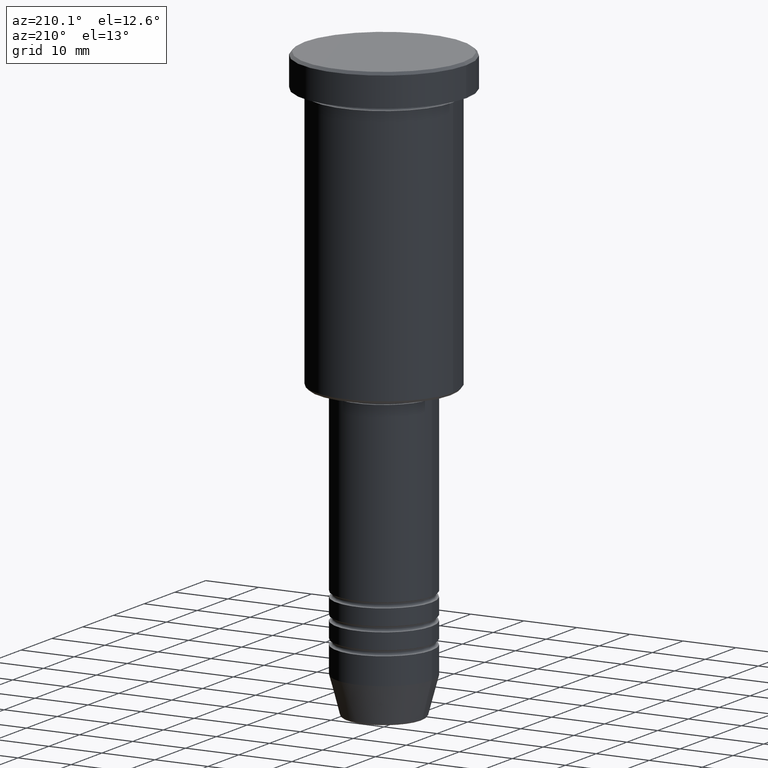
[diagram: clean part render]
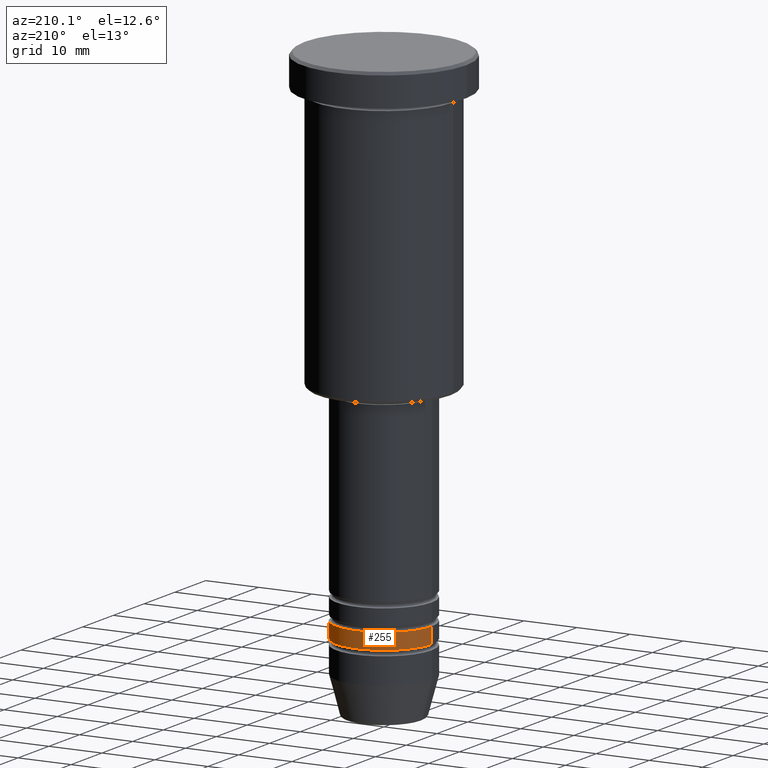
[diagram: same view with one face highlighted and labeled with its STEP entity id]
A machine part, auxiliary view. The second image highlights one B-rep face of the part: STEP entity #255.
In plain terms, the highlighted cylindrical surface (partial cylindrical patch) has radius 9 mm, axis along (-0, -0, 1).
Its self-contained STEP definition (entity closure, byte-faithful):
#25 = DIRECTION ( 'NONE',  ( 1.000000000000000000, 0.000000000000000000, 0.000000000000000000 ) ) ;
#83 = EDGE_CURVE ( 'NONE', #944, #1179, #112, .T. ) ;
#112 = CIRCLE ( 'NONE', #720, 9.000000000000000000 ) ;
#118 = CARTESIAN_POINT ( 'NONE',  ( 0.000000000000000000, 0.000000000000000000, 0.000000000000000000 ) ) ;
#127 = CARTESIAN_POINT ( 'NONE',  ( 9.000000000000001776, 0.000000000000000000, 0.000000000000000000 ) ) ;
#184 = DIRECTION ( 'NONE',  ( 1.000000000000000000, 0.000000000000000000, 0.000000000000000000 ) ) ;
#199 = CIRCLE ( 'NONE', #1172, 9.000000000000001776 ) ;
#255 = ADVANCED_FACE ( 'NONE', ( #745 ), #320, .T. ) ;
#266 = DIRECTION ( 'NONE',  ( -0.000000000000000000, -0.000000000000000000, 1.000000000000000000 ) ) ;
#280 = CARTESIAN_POINT ( 'NONE',  ( -9.000000000000001776, 1.102182119232617911E-15, -97.99999999999988631 ) ) ;
#320 = CYLINDRICAL_SURFACE ( 'NONE', #792, 9.000000000000001776 ) ;
#328 = CARTESIAN_POINT ( 'NONE',  ( 9.000000000000000000, 0.000000000000000000, -94.99999999999988631 ) ) ;
#336 = VECTOR ( 'NONE', #856, 1000.000000000000000 ) ;
#337 = ORIENTED_EDGE ( 'NONE', *, *, #83, .F. ) ;
#338 = LINE ( 'NONE', #435, #1105 ) ;
#364 = CARTESIAN_POINT ( 'NONE',  ( 0.000000000000000000, 0.000000000000000000, -94.99999999999988631 ) ) ;
#381 = EDGE_CURVE ( 'NONE', #494, #1179, #338, .T. ) ;
#430 = ORIENTED_EDGE ( 'NONE', *, *, #1125, .T. ) ;
#435 = CARTESIAN_POINT ( 'NONE',  ( -9.000000000000001776, 1.102182119232617911E-15, 0.000000000000000000 ) ) ;
#463 = VERTEX_POINT ( 'NONE', #603 ) ;
#494 = VERTEX_POINT ( 'NONE', #280 ) ;
#541 = DIRECTION ( 'NONE',  ( 1.000000000000000000, 0.000000000000000000, 0.000000000000000000 ) ) ;
#559 = ORIENTED_EDGE ( 'NONE', *, *, #641, .F. ) ;
#603 = CARTESIAN_POINT ( 'NONE',  ( 9.000000000000001776, 0.000000000000000000, -97.99999999999988631 ) ) ;
#641 = EDGE_CURVE ( 'NONE', #463, #944, #1110, .T. ) ;
#646 = CARTESIAN_POINT ( 'NONE',  ( -9.000000000000000000, 1.102182119232617714E-15, -94.99999999999988631 ) ) ;
#720 = AXIS2_PLACEMENT_3D ( 'NONE', #364, #1176, #541 ) ;
#745 = FACE_OUTER_BOUND ( 'NONE', #932, .T. ) ;
#792 = AXIS2_PLACEMENT_3D ( 'NONE', #118, #834, #25 ) ;
#834 = DIRECTION ( 'NONE',  ( -0.000000000000000000, -0.000000000000000000, 1.000000000000000000 ) ) ;
#856 = DIRECTION ( 'NONE',  ( -0.000000000000000000, -0.000000000000000000, 1.000000000000000000 ) ) ;
#932 = EDGE_LOOP ( 'NONE', ( #430, #994, #337, #559 ) ) ;
#944 = VERTEX_POINT ( 'NONE', #328 ) ;
#994 = ORIENTED_EDGE ( 'NONE', *, *, #381, .T. ) ;
#1014 = CARTESIAN_POINT ( 'NONE',  ( 0.000000000000000000, 0.000000000000000000, -97.99999999999988631 ) ) ;
#1062 = DIRECTION ( 'NONE',  ( -0.000000000000000000, -0.000000000000000000, 1.000000000000000000 ) ) ;
#1105 = VECTOR ( 'NONE', #1062, 1000.000000000000000 ) ;
#1110 = LINE ( 'NONE', #127, #336 ) ;
#1125 = EDGE_CURVE ( 'NONE', #463, #494, #199, .T. ) ;
#1172 = AXIS2_PLACEMENT_3D ( 'NONE', #1014, #266, #184 ) ;
#1176 = DIRECTION ( 'NONE',  ( -0.000000000000000000, -0.000000000000000000, 1.000000000000000000 ) ) ;
#1179 = VERTEX_POINT ( 'NONE', #646 ) ;